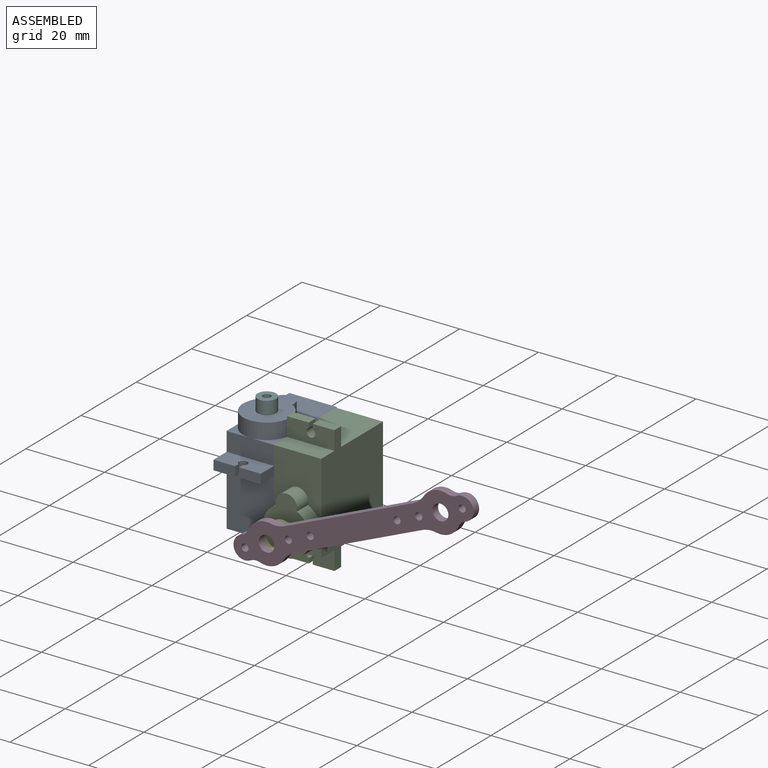
[diagram: assembled view]
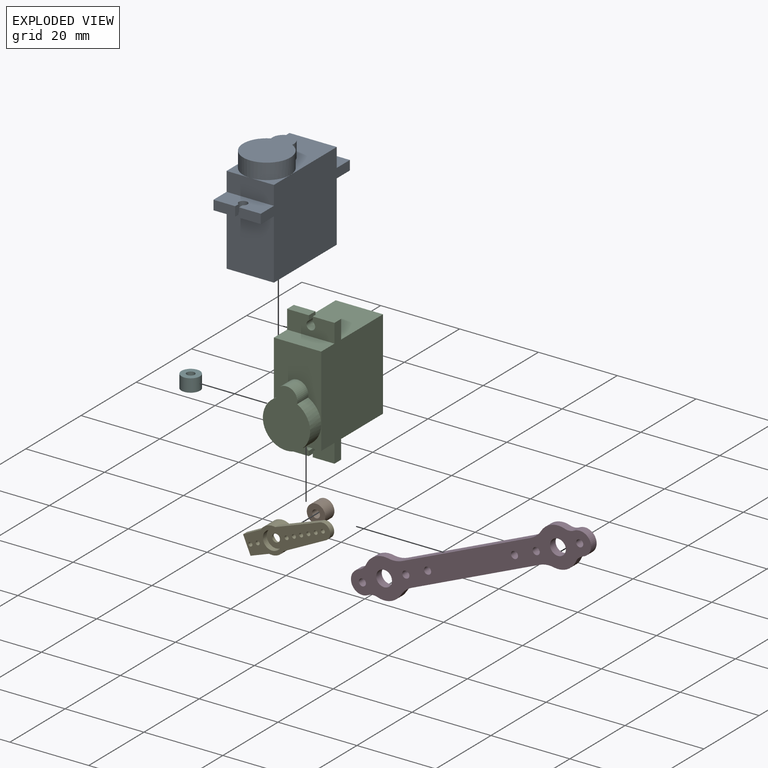
[diagram: exploded view]
GUIDED TOUR — MATED ASSEMBLY (Onshape document 7e8ca17d07b7f7ab5cebec74, AutoMate assembly 7e8ca17d07b7f7ab5cebec74_ae1e627b0ecc264f81650ca7_c665eb781cf5f14c4aa06b95_default)

This assembly has 6 components, labeled P0..P5 below (a component is one placed occurrence of a part; the same part can appear more than once), held together by 7 mates. A mate is a constraint between two components; its type names the relative motion it leaves free:
  CYLINDRICAL — leaves both rotation about and translation along the listed axis free,
  PLANAR — leaves sliding in the plane through the listed point (normal = the listed direction) and rotation about that normal free,
  REVOLUTE — leaves rotation about the listed axis free (a hinge).
Axis/direction vectors are unit vectors and 'through' points are millimeter coordinates, both in the assembly's world frame.

MATES
  1. REVOLUTE "Revolute 2": P3 <-> P4, axis (0.000, -1.000, 0.000) through (-6.37, -28.73, 8.76) mm
  2. PLANAR "Planar 2": P0 <-> P2, direction (0.000, 0.000, 1.000) through (-23.39, -5.14, 20.80) mm
  3. PLANAR "Planar 4": P3 <-> P4, direction (0.000, 1.000, 0.000) through (4.66, -28.73, 13.50) mm
  4. REVOLUTE "Revolute 1": P4 <-> P1, axis (0.000, 1.000, 0.000) through (-17.39, -26.83, 4.02) mm
  5. PLANAR "Planar 3": P2 <-> P0, direction (-1.000, 0.000, 0.000) through (-23.39, -8.55, 9.41) mm
  6. PLANAR "Planar 1": P2 <-> P0, direction (0.000, -1.000, 0.000) through (-23.39, -19.53, 12.41) mm
  7. CYLINDRICAL "Cylindrical 1": P3 <-> P4, axis (0.000, -1.000, 0.000) through (-17.39, -28.73, 4.02) mm

ASSEMBLY ORDER
  1. P4 — the base component [order verified]
  2. P1 [order verified]
  3. P2 [order verified]
  4. P0 [order verified]
  5. P5 [order verified]
  6. P3 [order verified]
(P1 verified with a relaxed clearance tolerance: the source model stores slight part interference there.)
Order-tag legend:
  [order verified] — this step's position reverses a verified removal order: the component was checked to insert without passing through the ones already placed.

Of the 6 components, 1 carries the full construction recipe — the FeatureScript program that regenerates the part's solid from scratch; the rest are supplied as boundary geometry only.
Each toured component is shown spotlighted twice — in the assembled view, then in the exploded view, where a leader line traces a displaced component back to its assembled socket (saturated green if recipe-attached, orange if geometry-only; every other component desaturated gray) — followed by its recipe or geometry summary and the mates that hold it.
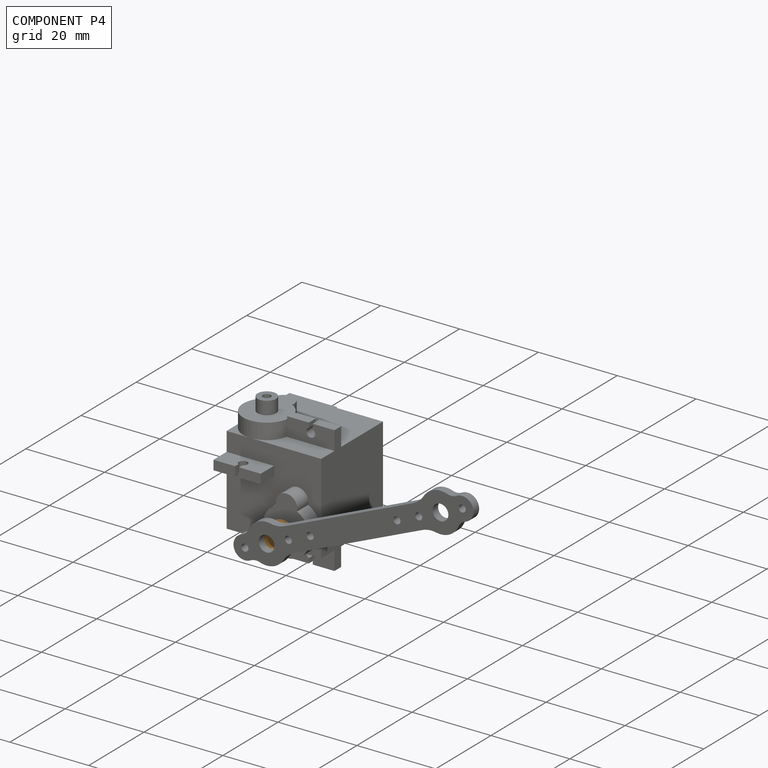
[diagram: component P4 — assembled]
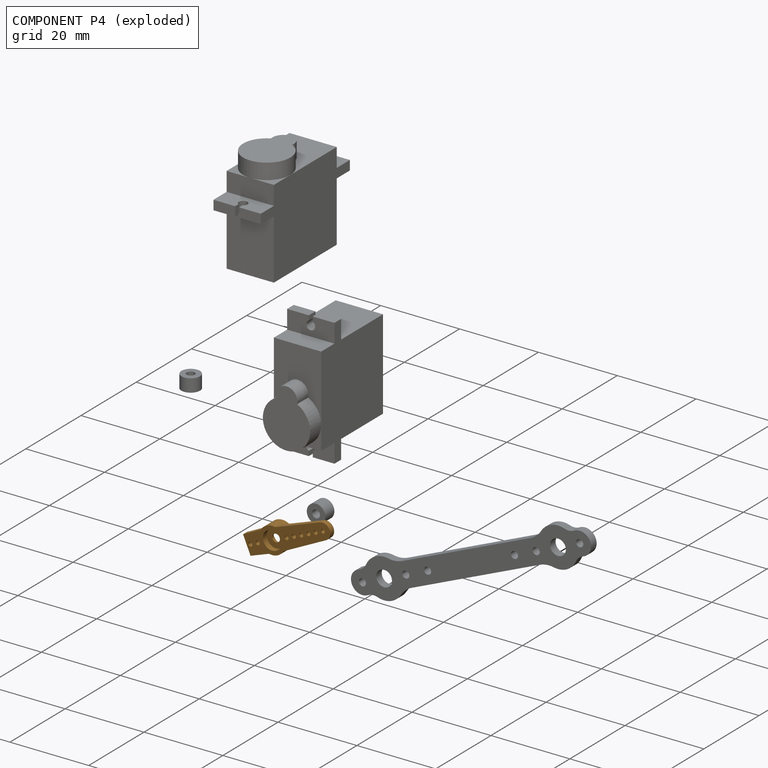
[diagram: component P4 — exploded]
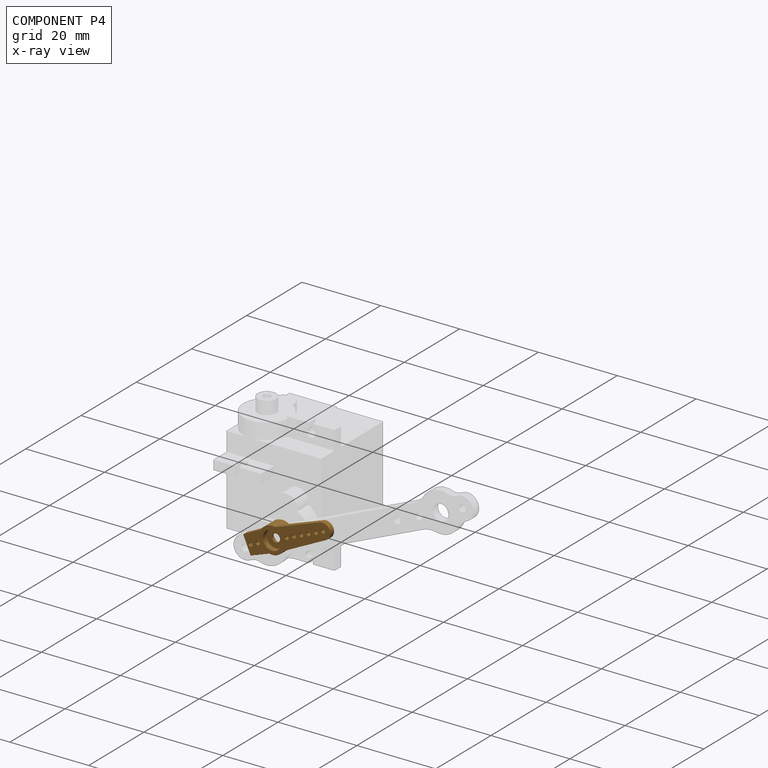
[diagram: component P4 — x-ray view]
COMPONENT P4 — geometry summary (no construction recipe available for this part):
  bounding box: 22.9 x 6.7 x 3.7 mm
  B-rep topology: 1 solid, 24 faces, 120 edges
  volume: 173 mm^3 (31% of its bounding box)
  symmetry: mirror-symmetric across its y mid-plane
Held by: REVOLUTE mate "Revolute 2" to P3; PLANAR mate "Planar 4" to P3; REVOLUTE mate "Revolute 1" to P1; CYLINDRICAL mate "Cylindrical 1" to P3.
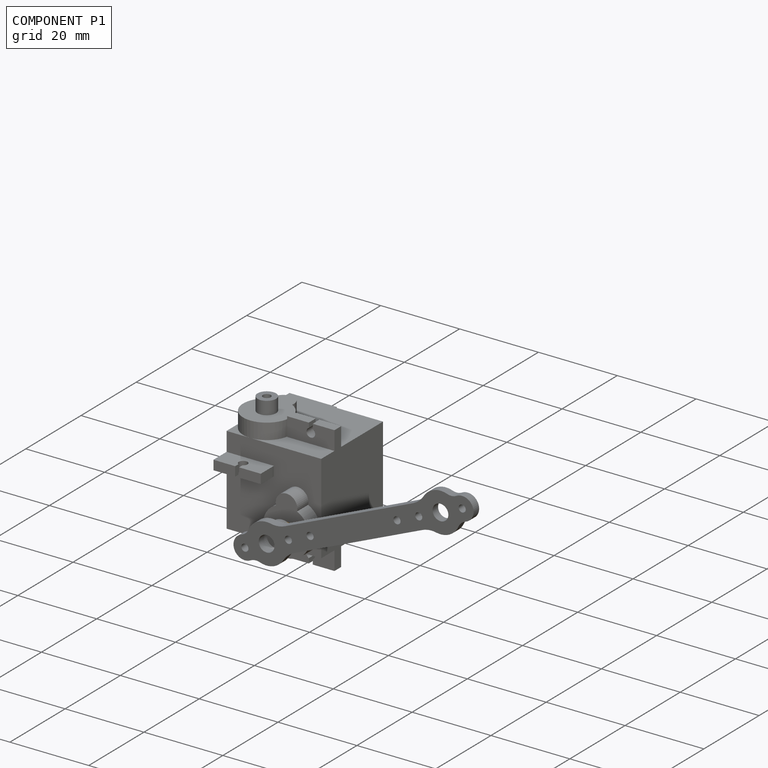
[diagram: component P1 — assembled]
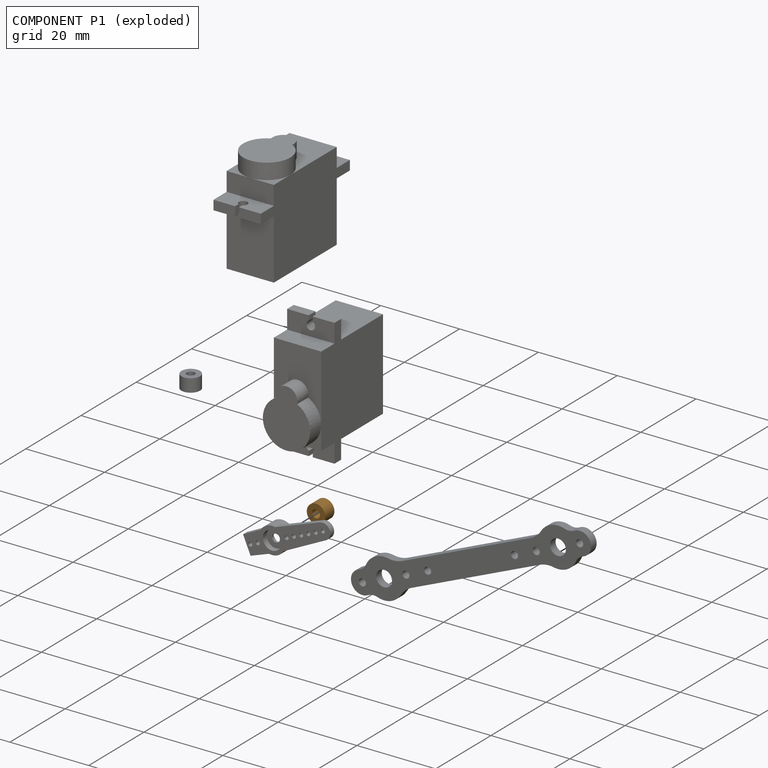
[diagram: component P1 — exploded]
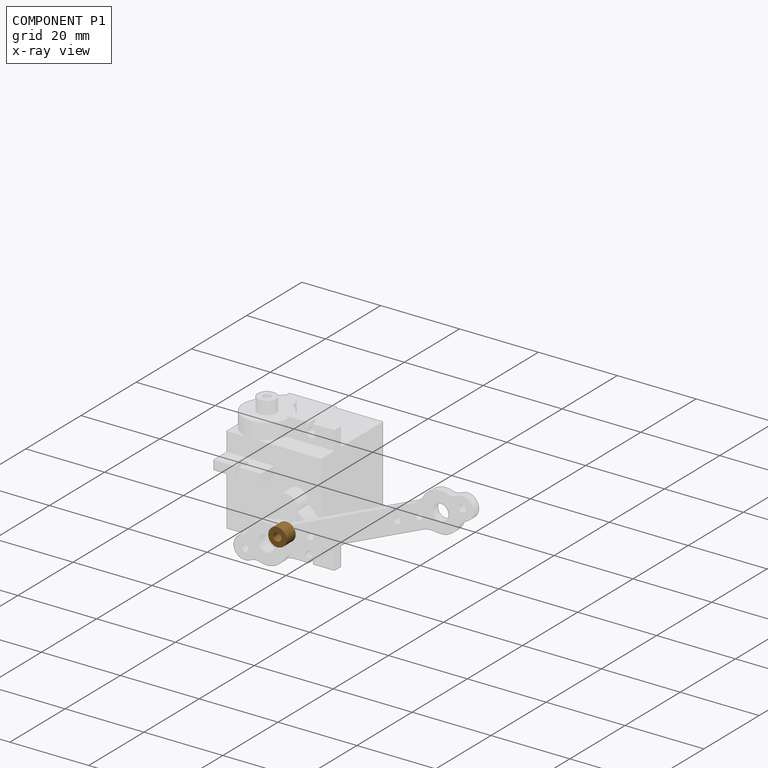
[diagram: component P1 — x-ray view]
COMPONENT P1 — geometry summary (no construction recipe available for this part):
  bounding box: 4.7 x 4.7 x 3.3 mm
  B-rep topology: 1 solid, 4 faces, 12 edges
  volume: 47 mm^3 (64% of its bounding box)
  symmetry: 2-fold rotationally symmetric about the x axis; 2-fold rotationally symmetric about the y axis; revolution-symmetric about the z axis through its bounding-box center; mirror-symmetric across its x mid-plane, y mid-plane, z mid-plane
Held by: REVOLUTE mate "Revolute 1" to P4.
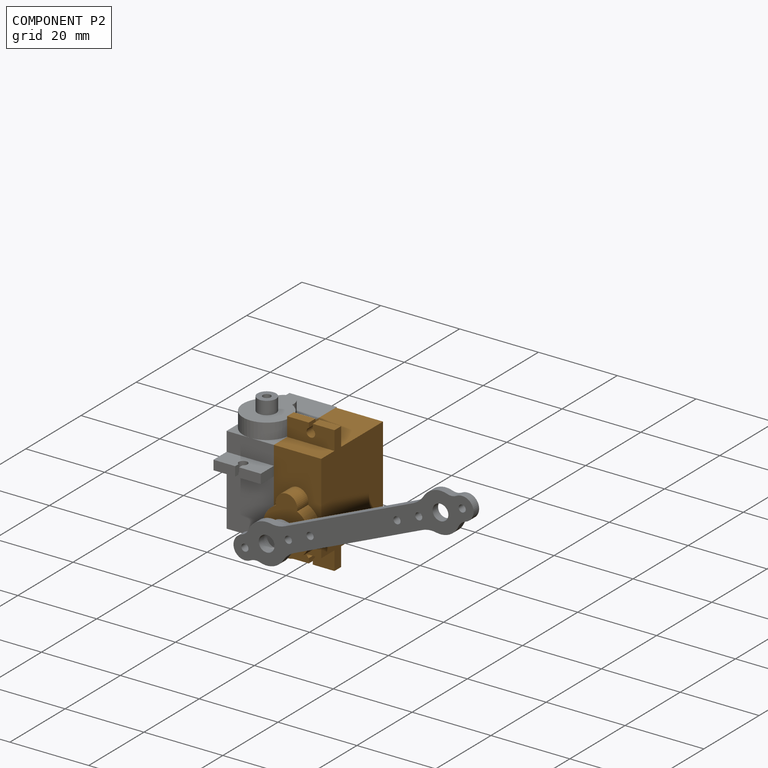
[diagram: component P2 — assembled]
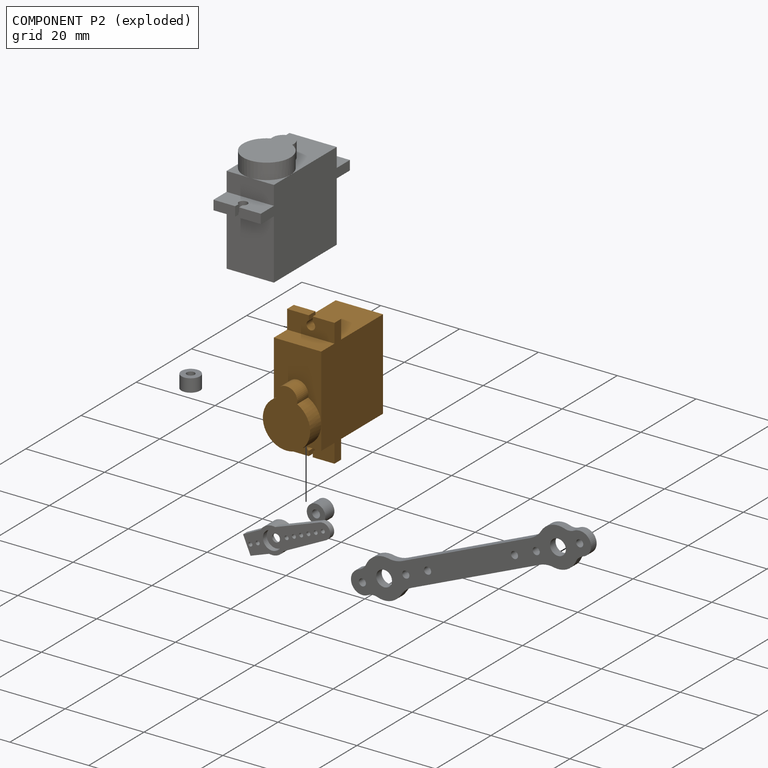
[diagram: component P2 — exploded]
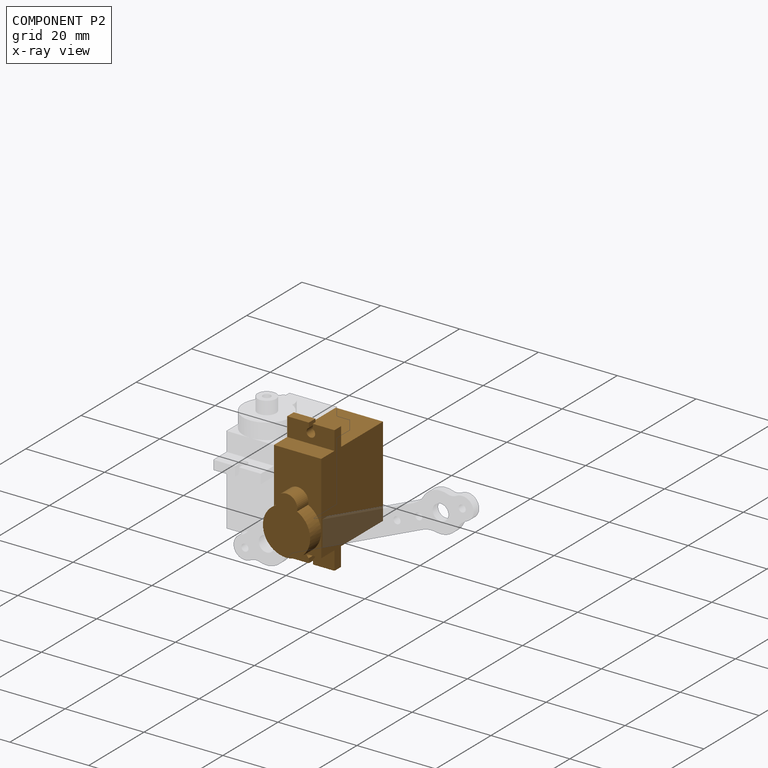
[diagram: component P2 — x-ray view]
COMPONENT P2 — geometry summary (no construction recipe available for this part):
  bounding box: 32.3 x 26.4 x 12.0 mm
  B-rep topology: 1 solid, 27 faces, 144 edges
  volume: 6878 mm^3 (67% of its bounding box)
  symmetry: mirror-symmetric across its x mid-plane
Held by: PLANAR mate "Planar 2" to P0; PLANAR mate "Planar 3" to P0; PLANAR mate "Planar 1" to P0.
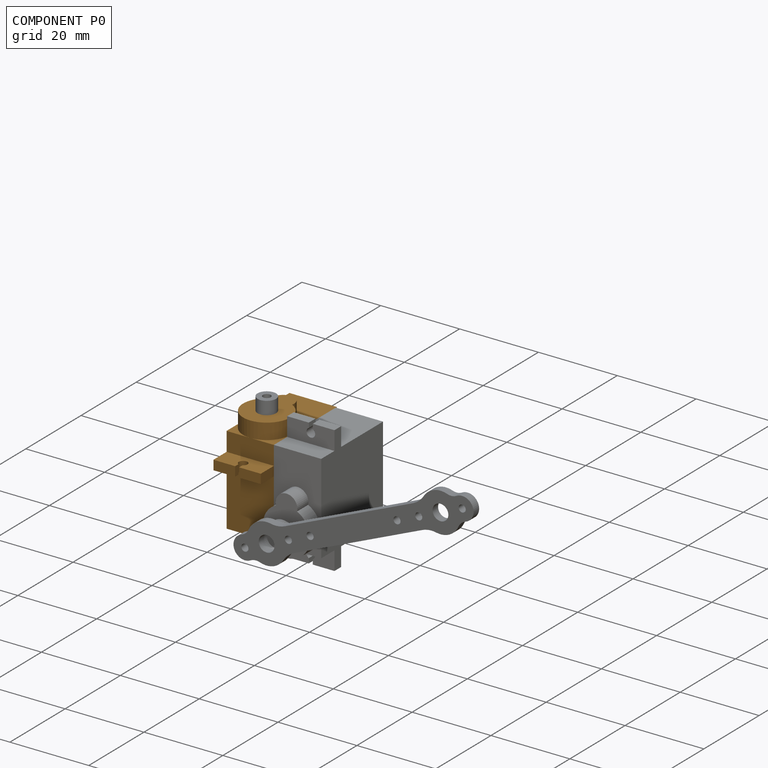
[diagram: component P0 — assembled]
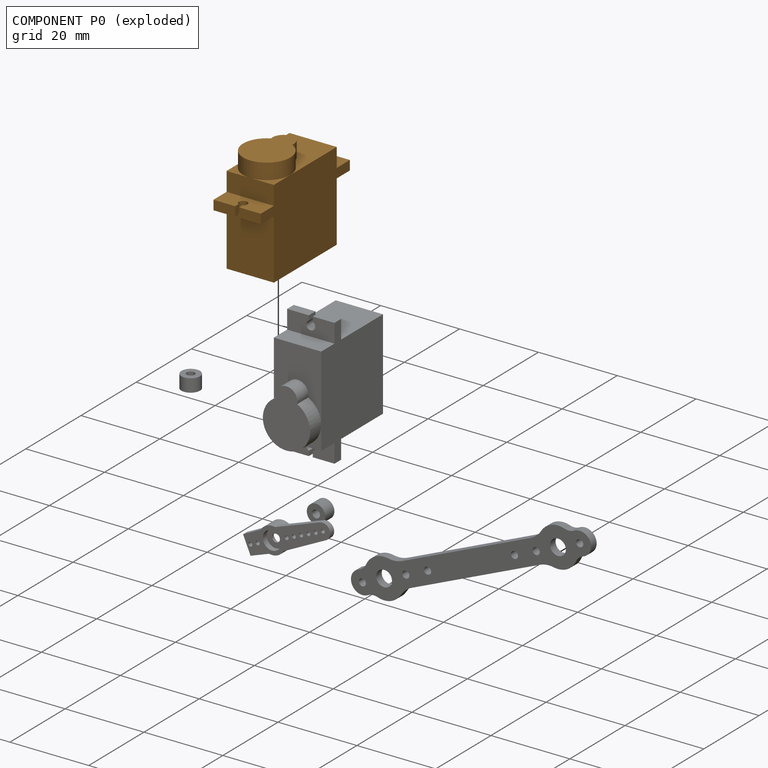
[diagram: component P0 — exploded]
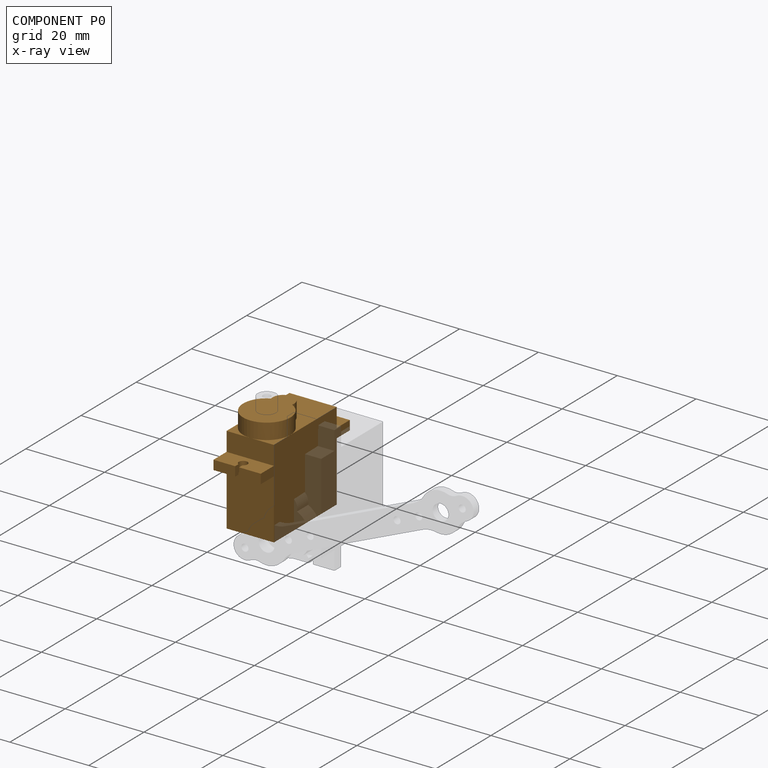
[diagram: component P0 — x-ray view]
COMPONENT P0 — geometry summary (no construction recipe available for this part):
  bounding box: 32.3 x 26.4 x 12.0 mm
  B-rep topology: 1 solid, 27 faces, 144 edges
  volume: 6878 mm^3 (67% of its bounding box)
  symmetry: mirror-symmetric across its x mid-plane
Held by: PLANAR mate "Planar 2" to P2; PLANAR mate "Planar 3" to P2; PLANAR mate "Planar 1" to P2.
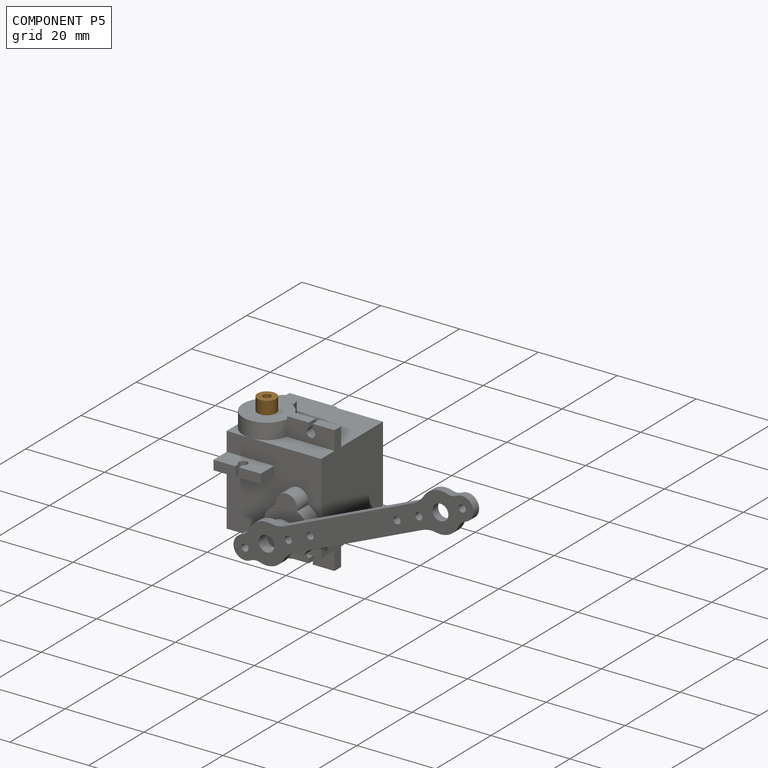
[diagram: component P5 — assembled]
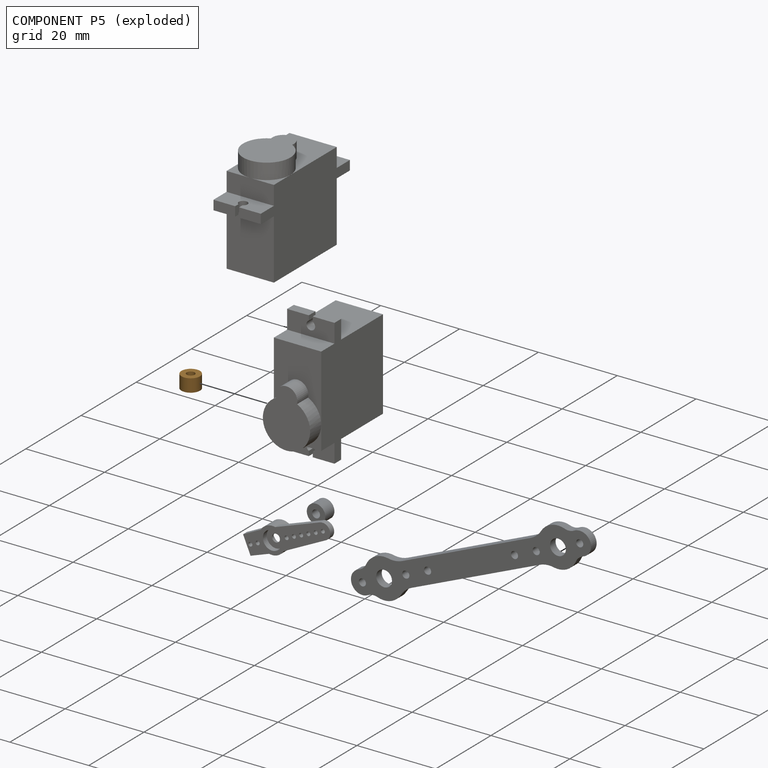
[diagram: component P5 — exploded]
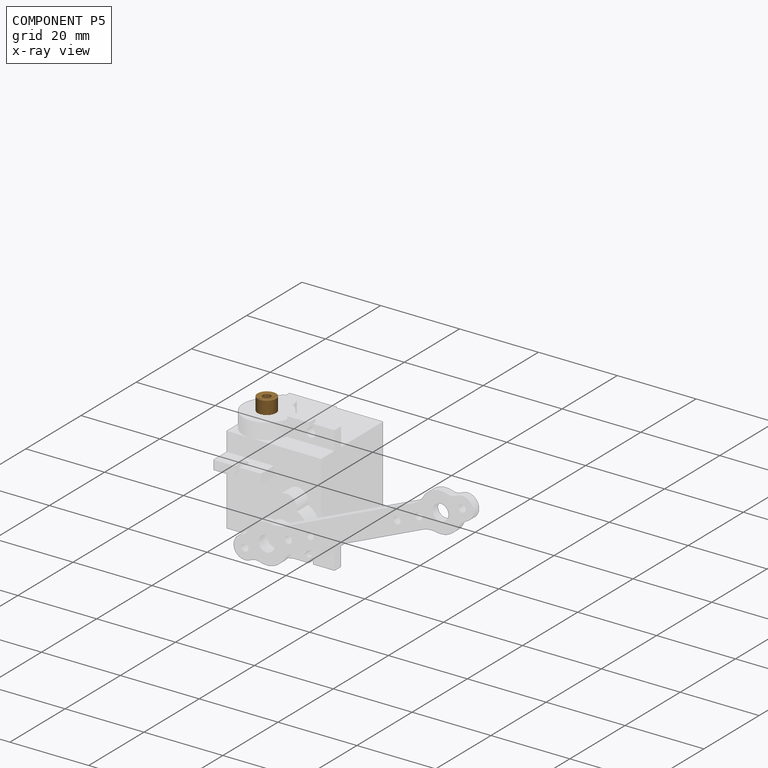
[diagram: component P5 — x-ray view]
COMPONENT P5 — geometry summary (no construction recipe available for this part):
  bounding box: 4.7 x 4.7 x 3.3 mm
  B-rep topology: 1 solid, 4 faces, 12 edges
  volume: 47 mm^3 (64% of its bounding box)
  symmetry: 2-fold rotationally symmetric about the x axis; 2-fold rotationally symmetric about the y axis; revolution-symmetric about the z axis through its bounding-box center; mirror-symmetric across its x mid-plane, y mid-plane, z mid-plane
Held by: no mates (free).
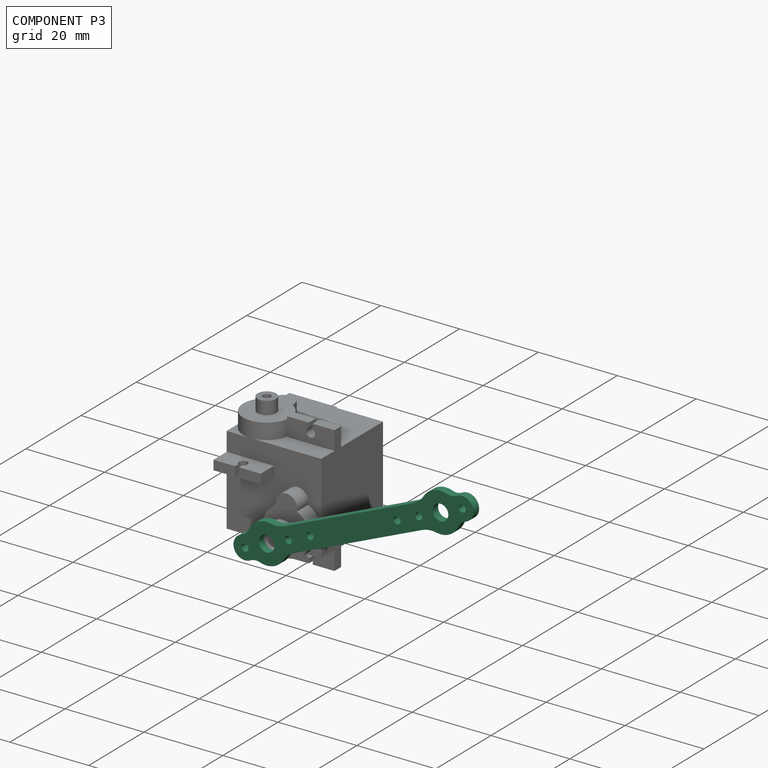
[diagram: component P3 — assembled]
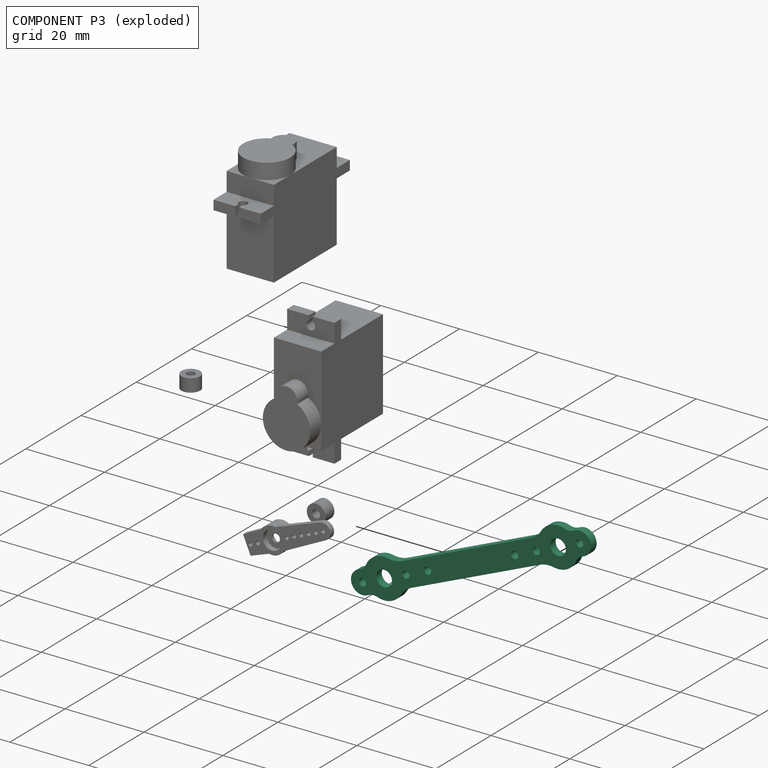
[diagram: component P3 — exploded]
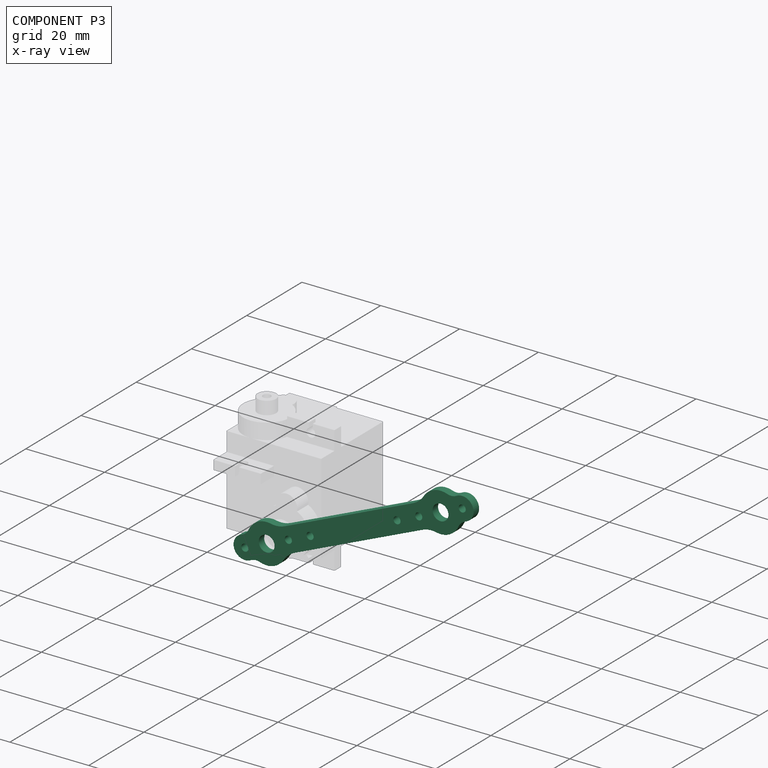
[diagram: component P3 — x-ray view]
COMPONENT P3 — recipe-attached (CADFS 00189667, mesh-verified: the recipe's output STEP matches this component's geometry to below the mesh-comparison resolution (tessellation chordal tolerance ~0.0999 mm)).
Held by: REVOLUTE mate "Revolute 2" to P4; PLANAR mate "Planar 4" to P4; CYLINDRICAL mate "Cylindrical 1" to P4.
Construction recipe (FeatureScript — the CAD program that rebuilds this solid; sketch coordinates are in the units given by the * unit suffixes, e.g. mm):

FeatureScript 1511;
import(path : "onshape/std/geometry.fs", version : "1511.0");
import(path : "onshape/std/common.fs", version : "1511.0");
const mm = millimeter;
const VERTEX = EntityType.VERTEX;
const EDGE = EntityType.EDGE;
const FACE = EntityType.FACE;
const BODY = EntityType.BODY;
function v(x, y){return vector(x, y);}
function OD(order){return orderDisambiguation(order);}
function OSD(set){return originalSetDisambiguation(set);}
function TD(topology){return topologyDisambiguation(topology);}
function TDD(query){return trueDependencyDisambiguation(query);}
function sQuery(a, b, c) {return sketchEntityQuery(a, b, c);}

annotation { "Feature Type Name" : "Feature", "Feature Type Description" : "" }
export const myFeature = defineFeature(function(context is Context, id is Id, definition is map)
    precondition{}
    {
        {
            var Q0;
            Q0=qCreatedBy(makeId("Top.planeOp"),FACE);
            var sketch = newSketch(context, id + "F0", { "sketchPlane" : qUnion([Q0])});
            skLineSegment(sketch, "E0", {"start": v(0, 0) * mm, "end": v(-24, 0) * mm, "construction": true});
            skCircle(sketch, "E1", {"center": v(-24, 0) * mm, "radius": 2 * mm});
            skCircle(sketch, "E2", {"center": v(-18, 0) * mm, "radius": 0.9 * mm});
            skCircle(sketch, "E3", {"center": v(-12, 0) * mm, "radius": 0.9 * mm});
            skCircle(sketch, "E4", {"center": v(-30, 0) * mm, "radius": 0.9 * mm});
            skLineSegment(sketch, "E5", {"start": v(0, 3) * mm, "end": v(-17.68, 3) * mm});
            skLineSegment(sketch, "E6.MirrorCS", {"start": v(0, -3) * mm, "end": v(-17.68, -3) * mm});
            skArc(sketch, "E7.0", {"start": v(-27.4, -3.67) * mm, "mid": v(-24.33, -4.99) * mm, "end": v(-21.13, -4.1) * mm});
            skArc(sketch, "E8.0", {"start": v(-29.72, 2.89) * mm, "mid": v(-32.9, 0) * mm, "end": v(-29.72, -2.89) * mm});
            skArc(sketch, "E9.trimOffspring", {"start": v(-21.13, 4.1) * mm, "mid": v(-24.33, 4.99) * mm, "end": v(-27.4, 3.67) * mm});
            skPoint(sketch, "E10.orphan", {"position": v(-20.58, 3) * mm});
            skPoint(sketch, "E11.orphan", {"position": v(-20.58, -3) * mm});
            skPoint(sketch, "E12.visualSharp", {"position": v(-20, 3) * mm});
            skArc(sketch, "E12.filletArc", {"start": v(-21.13, 4.1) * mm, "mid": v(-19.48, 3.28) * mm, "end": v(-17.68, 3) * mm});
            skPoint(sketch, "E13.visualSharp", {"position": v(-20, -3) * mm});
            skArc(sketch, "E13.filletArc", {"start": v(-17.68, -3) * mm, "mid": v(-19.48, -3.28) * mm, "end": v(-21.13, -4.1) * mm});
            skPoint(sketch, "E14.visualSharp", {"position": v(-28.38, 2.4) * mm});
            skArc(sketch, "E14.filletArc", {"start": v(-29.72, 2.89) * mm, "mid": v(-28.47, 3.03) * mm, "end": v(-27.4, 3.67) * mm});
            skPoint(sketch, "E15.visualSharp", {"position": v(-28.38, -2.4) * mm});
            skArc(sketch, "E15.filletArc", {"start": v(-27.4, -3.67) * mm, "mid": v(-28.47, -3.03) * mm, "end": v(-29.72, -2.89) * mm});
            skLineSegment(sketch, "E16", {"start": v(0, 0) * mm, "end": v(0, 11) * mm, "construction": true});
            skLineSegment(sketch, "E17.MirrorCS", {"start": v(0, 3) * mm, "end": v(17.68, 3) * mm});
            skArc(sketch, "E18.MirrorCS", {"start": v(21.13, 4.1) * mm, "mid": v(19.48, 3.28) * mm, "end": v(17.68, 3) * mm});
            skArc(sketch, "E19.MirrorCS", {"start": v(21.13, 4.1) * mm, "mid": v(24.33, 4.99) * mm, "end": v(27.4, 3.67) * mm});
            skArc(sketch, "E20.MirrorCS", {"start": v(29.72, 2.89) * mm, "mid": v(28.47, 3.03) * mm, "end": v(27.4, 3.67) * mm});
            skArc(sketch, "E21.MirrorCS", {"start": v(29.72, 2.89) * mm, "mid": v(32.9, 0) * mm, "end": v(29.72, -2.89) * mm});
            skArc(sketch, "E22.MirrorCS", {"start": v(27.4, -3.67) * mm, "mid": v(28.47, -3.03) * mm, "end": v(29.72, -2.89) * mm});
            skArc(sketch, "E23.MirrorCS", {"start": v(27.4, -3.67) * mm, "mid": v(24.33, -4.99) * mm, "end": v(21.13, -4.1) * mm});
            skArc(sketch, "E24.MirrorCS", {"start": v(17.68, -3) * mm, "mid": v(19.48, -3.28) * mm, "end": v(21.13, -4.1) * mm});
            skLineSegment(sketch, "E25.MirrorCS", {"start": v(0, -3) * mm, "end": v(17.68, -3) * mm});
            skCircle(sketch, "E26.MirrorC", {"center": v(12, 0) * mm, "radius": 0.9 * mm});
            skCircle(sketch, "E27.MirrorC", {"center": v(18, 0) * mm, "radius": 0.9 * mm});
            skCircle(sketch, "E28.MirrorC", {"center": v(24, 0) * mm, "radius": 2 * mm});
            skCircle(sketch, "E29.MirrorC", {"center": v(30, 0) * mm, "radius": 0.9 * mm});
            skSolve(sketch);
        }
        {
            var Q0;
            Q0=makeQuery(id+"F0.imprint","IMPRINT",FACE,{"disambiguationData":[TD([[makeQuery(id+"F0.imprint","IMPRINT",EDGE,{"derivedFrom":sQuery(id+"F0.wireOp",EDGE,"E1")}),-1.0]])]});
            extrude(context, id + "F1", {"entities" : qUnion([Q0]), "depth" : 2 * mm});
        }
    });
PROVENANCE & LICENSES
Assembly (occurrences, transforms, mates, per-part STEP geometry): AutoMate dataset, Zenodo record 7776208, CC0.
Construction recipes: CADFS (HuggingFace VladPyatov/CADFS, CC-BY-4.0, layered over the ABC dataset), FeatureScript reconstruction programs keyed by ABC model id.
Join: ABC meta listings map ABC model id -> Onshape documentId; within a shared document, parts are matched by geometric signature (bounding-box dims + volume at 0.1% relative tolerance, exact B-rep face/solid counts).
Verification: 1 of this assembly's 6 components carries a recipe attachment, and every attachment is mesh-verified: the CADFS STEP and the AutoMate member STEP were compared as meshes in their shared local frame (symmetric sampled-point-to-mesh distance); worst across the 1 attachment: below the mesh-comparison resolution (tessellation chordal tolerance ~0.0999 mm) on a 67 mm part.
Renders: orthographic iso camera (az 35 / el 25); the floor grid conveys scale (grid pitch printed in each image; no ruler). In the exploded view each component is displaced by its stored offset vector: the offsets alone carry the explosion direction (mate normal/axis signs are not orientation cues and do not encode it), and separation distances are assigned per mate-chain, not proportionally to assembly-order depth.
